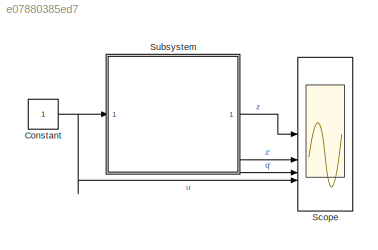
MODEL slx_e07880385ed7
KIND model
CONFIG AbsTol = auto
CONFIG EnableMultiTasking = on
CONFIG FixedStep = 0.001
CONFIG MaxStep = auto
CONFIG MinStep = auto
CONFIG RelTol = 1e-3
CONFIG SampleTimeConstraint = Unconstrained
CONFIG SolverName = ode45
CONFIG StartTime = 0.0
CONFIG StopTime = sim_time
BLOCK [Constant] Constant
BLOCK [Scope] Scope
  Floating = off
  NumInputPorts = 4
  ScopeSpecificationString = Simulink.scopes.TimeScopeBlockCfg('CurrentConfiguration', extmgr.ConfigurationSet(extmgr.Configuration('Core','General UI',true),extmgr.Configuration('Core','Source UI',true),extmgr.Configuration('Sources','WiredSimulink',true,'DataLoggingLimitDataPoints',true,'DataLoggingSaveFormat','Array','DataLoggingDecimation','1','DataLoggingDecimateData',true),extmgr.Configuration('Visuals','Time Domain',tr...<+3673ch>
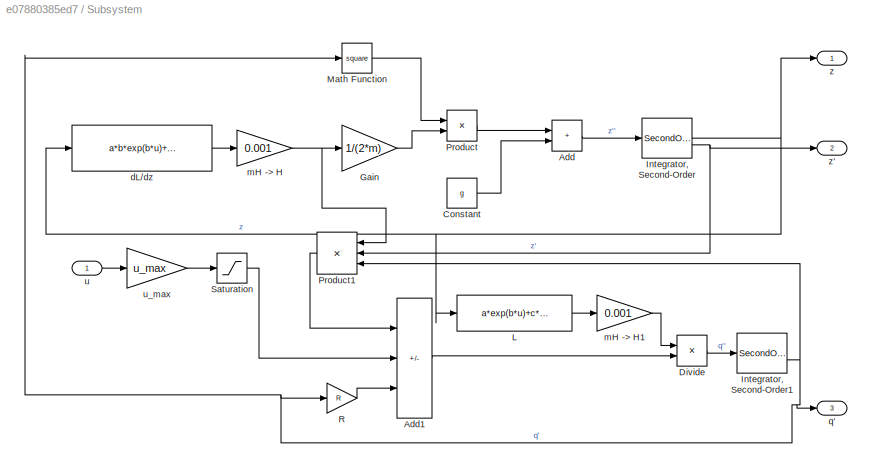
BLOCK [SubSystem] Subsystem
BLOCK [Sum] Subsystem/Add
  IconShape = rectangular
BLOCK [Sum] Subsystem/Add1
  IconShape = rectangular
  Inputs = -+-
BLOCK [Constant] Subsystem/Constant
  Value = g
BLOCK [Product] Subsystem/Divide
  Inputs = /*
BLOCK [Gain] Subsystem/Gain
  Gain = 1/(2*m)
BLOCK [SecondOrderIntegrator] Subsystem/Integrator, Second-Order
  ICX = x0
  LimitX = on
  LowerLimitX = 0
  UpperLimitX = 0.025
BLOCK [SecondOrderIntegrator] Subsystem/Integrator, Second-Order1
  ICX = q0
BLOCK [Fcn] Subsystem/L
  Expr = a*exp(b*u)+c*exp(d*u)
BLOCK [Math] Subsystem/Math Function
  Operator = square
  SignedPower = on
BLOCK [Product] Subsystem/Product
BLOCK [Product] Subsystem/Product1
  Inputs = 3
BLOCK [Gain] Subsystem/R
  Gain = R
BLOCK [Saturate] Subsystem/Saturation
  LowerLimit = 0
  UpperLimit = 12
BLOCK [Fcn] Subsystem/dL//dz
  Expr = a*b*exp(b*u)+c*d*exp(d*u)
BLOCK [Gain] Subsystem/mH -> H
  Gain = 0.001
BLOCK [Gain] Subsystem/mH -> H1
  Gain = 0.001
BLOCK [Outport] Subsystem/q'
  Port = 3
BLOCK [Inport] Subsystem/u
BLOCK [Gain] Subsystem/u_max
  Gain = u_max
BLOCK [Outport] Subsystem/z
BLOCK [Outport] Subsystem/z'
  Port = 2
NET Constant:1 -> Scope:4, Subsystem:1
LINE Subsystem/Add1:1 -> Subsystem/Divide:2
LINE Subsystem/Add:1 -> Subsystem/Integrator, Second-Order:1
LINE Subsystem/Constant:1 -> Subsystem/Add:2
LINE Subsystem/Divide:1 -> Subsystem/Integrator, Second-Order1:1
LINE Subsystem/Gain:1 -> Subsystem/Product:2
NET Subsystem/Integrator, Second-Order1:2 -> Subsystem/Math Function:1, Subsystem/Product1:3, Subsystem/R:1, Subsystem/q':1
NET Subsystem/Integrator, Second-Order:1 -> Subsystem/L:1, Subsystem/dL//dz:1, Subsystem/z:1
NET Subsystem/Integrator, Second-Order:2 -> Subsystem/Product1:2, Subsystem/z':1
LINE Subsystem/L:1 -> Subsystem/mH -> H1:1
LINE Subsystem/Math Function:1 -> Subsystem/Product:1
LINE Subsystem/Product1:1 -> Subsystem/Add1:1
LINE Subsystem/Product:1 -> Subsystem/Add:1
LINE Subsystem/R:1 -> Subsystem/Add1:3
LINE Subsystem/Saturation:1 -> Subsystem/Add1:2
LINE Subsystem/dL//dz:1 -> Subsystem/mH -> H:1
LINE Subsystem/mH -> H1:1 -> Subsystem/Divide:1
NET Subsystem/mH -> H:1 -> Subsystem/Gain:1, Subsystem/Product1:1
LINE Subsystem/u:1 -> Subsystem/u_max:1
LINE Subsystem/u_max:1 -> Subsystem/Saturation:1
LINE Subsystem:1 -> Scope:1
LINE Subsystem:2 -> Scope:2
LINE Subsystem:3 -> Scope:3
note: NET lines group one-source signal fan-out (src -> all destinations, sorted); 1:1 wires keep LINE
